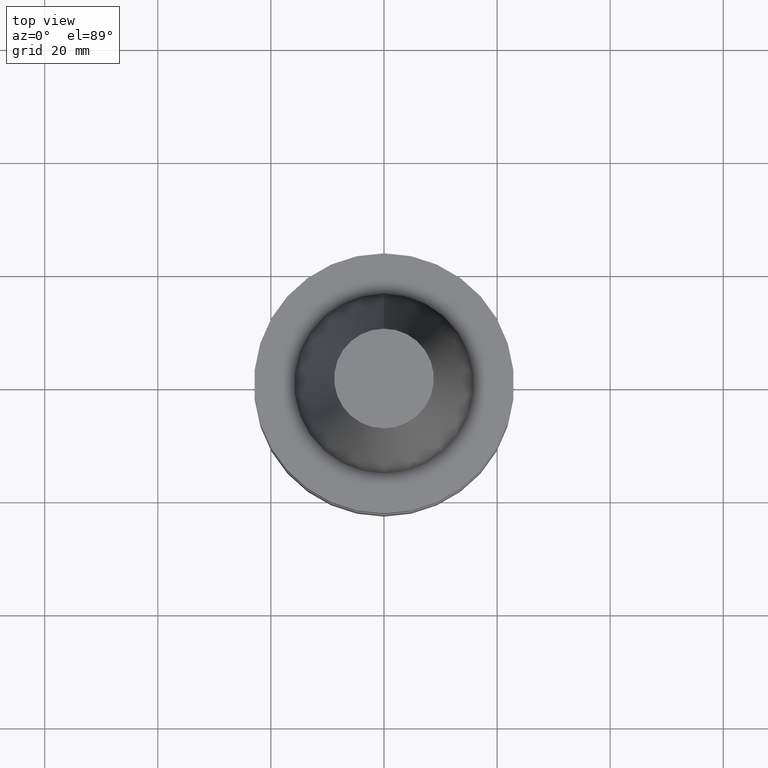
[diagram: clean part render]
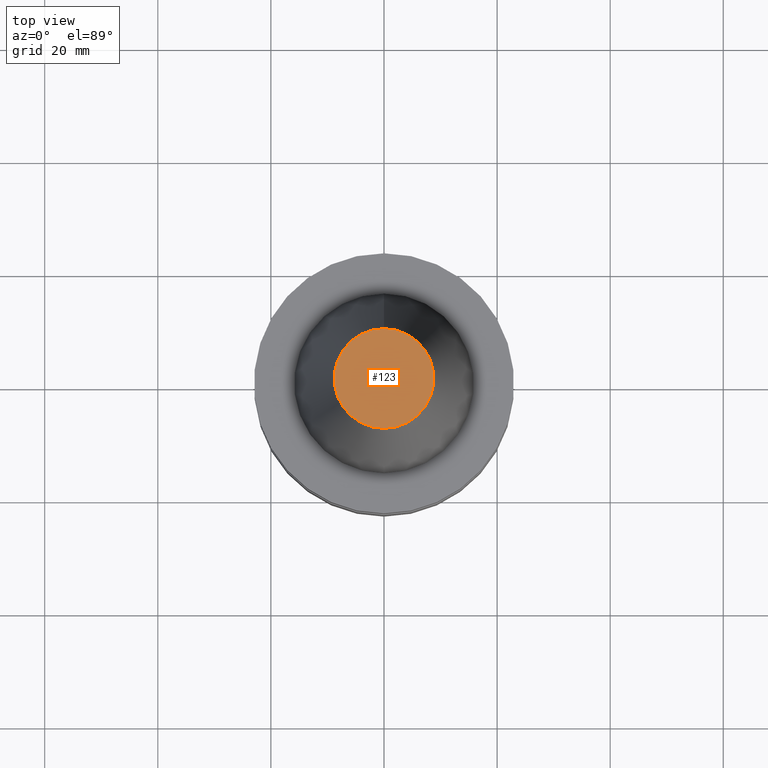
[diagram: same view with one face highlighted and labeled with its STEP entity id]
A machine part, top view. The second image highlights one B-rep face of the part: STEP entity #123.
In plain terms, the highlighted planar face has unit normal (-0, -0, 1).
Its self-contained STEP definition (entity closure, byte-faithful):
#56=EDGE_CURVE('Unnamed[1]',#153,#153,#154,.T.);
#123=ADVANCED_FACE('Unnamed[1]',(#257),#258,.T.);
#153=VERTEX_POINT('',#286);
#154=CIRCLE('',#287,8.81650000198669);
#257=FACE_OUTER_BOUND('',#415,.T.);
#258=PLANE('',#416);
#286=CARTESIAN_POINT('',(-2.96364525393659E-015,8.81650000198669,48.4));
#287=AXIS2_PLACEMENT_3D('',#442,#443,#444);
#415=EDGE_LOOP('',(#557));
#416=AXIS2_PLACEMENT_3D('',#558,#559,#560);
#442=CARTESIAN_POINT('',(-2.96364525393659E-015,-5.92729050787319E-015,48.4));
#443=DIRECTION('',(6.12323399573677E-017,1.22464679914735E-016,-1.0));
#444=DIRECTION('',(-1.23259516440783E-032,1.0,1.22464679914735E-016));
#557=ORIENTED_EDGE('',*,*,#56,.F.);
#558=CARTESIAN_POINT('',(-2.96364525393659E-015,4.40825000099334,48.4));
#559=DIRECTION('',(-6.12323399573677E-017,-1.22464679914735E-016,1.0));
#560=DIRECTION('',(1.23259516440783E-032,-1.0,-1.22464679914735E-016));